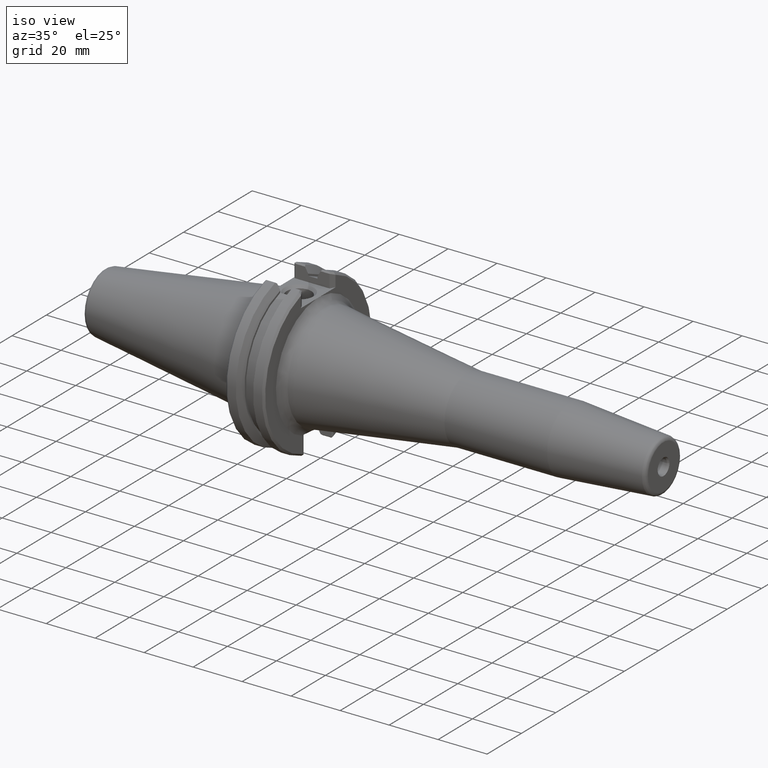
[diagram: clean part render]
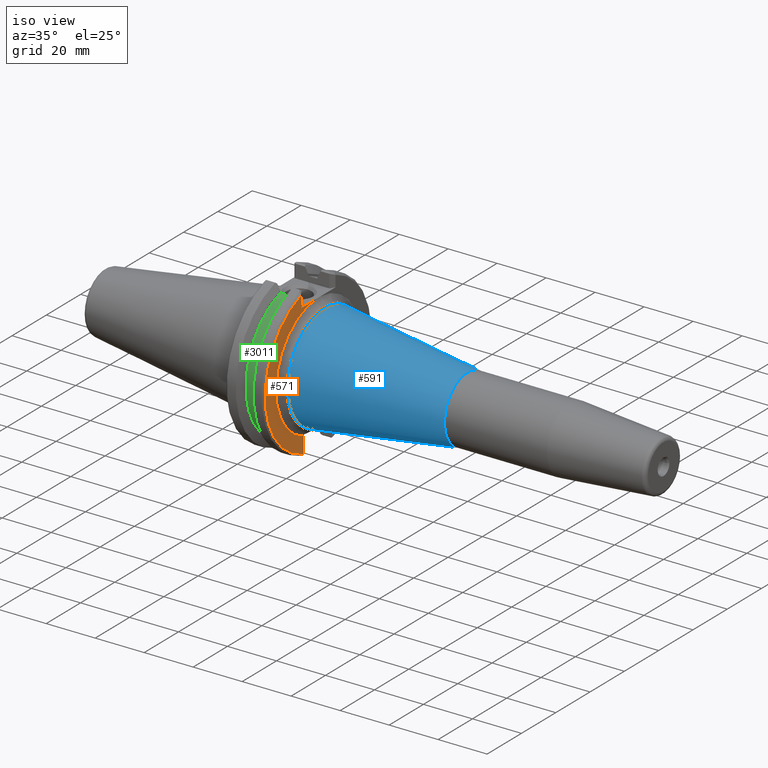
[diagram: same view with three faces highlighted in distinct colors, each labeled with its STEP entity id]
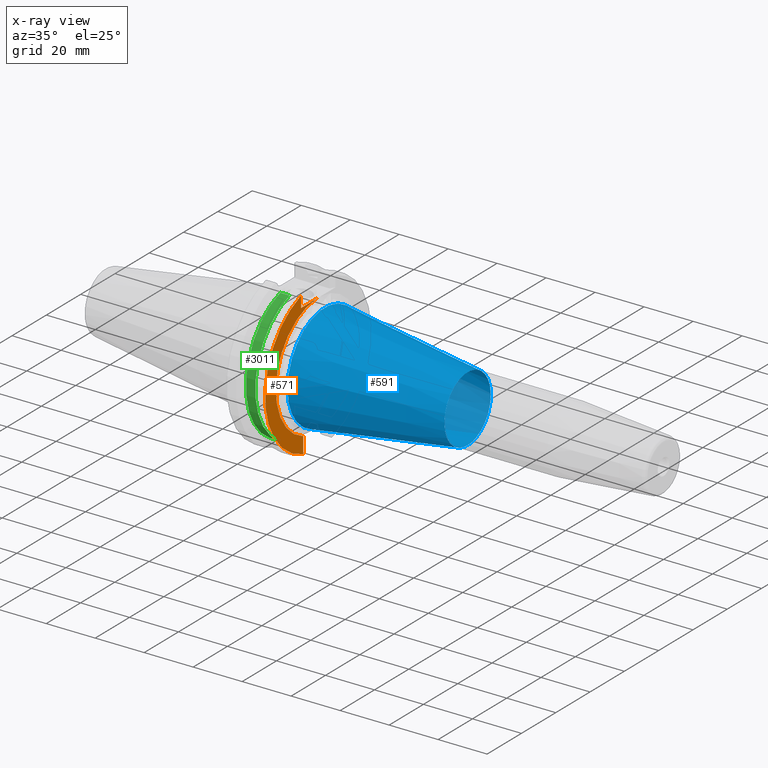
[diagram: x-ray of the same camera — body ghosted, the three highlighted faces saturated]
A machine part, iso view with three faces highlighted in distinct colors.
The next image is the same camera in x-ray (body ghosted, the three faces saturated) — at least one of them is partly hidden behind the body in this view.
Their STEP definitions:

[orange] entity #571 — the highlighted planar face has unit normal (1, 0, 0).
#426=CARTESIAN_POINT('',(19.050000000000001,-8.763000000012962,-23.111419435865770));
#427=VERTEX_POINT('',#426);
#495=CARTESIAN_POINT('',(19.050000000000001,-1.179420154457874,24.688799999999993));
#496=VERTEX_POINT('',#495);
#522=CARTESIAN_POINT('',(19.050000000000001,0.0,0.0));
#523=DIRECTION('',(1.0,0.0,0.0));
#524=DIRECTION('',(0.0,-1.0,0.0));
#525=AXIS2_PLACEMENT_3D('',#522,#523,#524);
#526=CIRCLE('',#525,24.716955260321633);
#527=EDGE_CURVE('',#496,#427,#526,.T.);
#532=CARTESIAN_POINT('',(19.050000000000001,11.112500000000001,0.0));
#533=DIRECTION('',(1.0,0.0,0.0));
#534=DIRECTION('',(0.0,0.0,-1.0));
#535=AXIS2_PLACEMENT_3D('',#532,#533,#534);
#536=PLANE('',#535);
#537=ORIENTED_EDGE('',*,*,#527,.F.);
#538=CARTESIAN_POINT('',(19.050000000000001,-10.033000000010706,24.688799999999993));
#539=VERTEX_POINT('',#538);
#540=CARTESIAN_POINT('',(19.050000000000001,-10.033000000010706,24.688799999999993));
#541=DIRECTION('',(0.0,1.0,0.0));
#542=VECTOR('',#541,8.853579845552831);
#543=LINE('',#540,#542);
#544=EDGE_CURVE('',#539,#496,#543,.T.);
#545=ORIENTED_EDGE('',*,*,#544,.F.);
#546=CARTESIAN_POINT('',(19.050000000000001,-10.033000000010706,29.318851529345160));
#547=VERTEX_POINT('',#546);
#548=CARTESIAN_POINT('',(19.050000000000001,-10.033000000010706,29.318851529345160));
#549=DIRECTION('',(0.0,0.0,-1.0));
#550=VECTOR('',#549,4.630051529345167);
#551=LINE('',#548,#550);
#552=EDGE_CURVE('',#547,#539,#551,.T.);
#553=ORIENTED_EDGE('',*,*,#552,.F.);
#554=CARTESIAN_POINT('',(19.050000000000001,-8.763000000012962,-29.723155535706042));
#555=VERTEX_POINT('',#554);
#556=CARTESIAN_POINT('',(19.050000000000001,0.0,0.0));
#557=DIRECTION('',(-1.0,0.0,0.0));
#558=DIRECTION('',(0.0,-1.0,0.0));
#559=AXIS2_PLACEMENT_3D('',#556,#557,#558);
#560=CIRCLE('',#559,30.988000000000000);
#561=EDGE_CURVE('',#555,#547,#560,.T.);
#562=ORIENTED_EDGE('',*,*,#561,.F.);
#563=CARTESIAN_POINT('',(19.050000000000001,-8.763000000012962,-23.111419435865770));
#564=DIRECTION('',(0.0,0.0,-1.0));
#565=VECTOR('',#564,6.611736099840272);
#566=LINE('',#563,#565);
#567=EDGE_CURVE('',#427,#555,#566,.T.);
#568=ORIENTED_EDGE('',*,*,#567,.F.);
#569=EDGE_LOOP('',(#537,#545,#553,#562,#568));
#570=FACE_OUTER_BOUND('',#569,.T.);
#571=ADVANCED_FACE('',(#570),#536,.T.);

[blue] entity #591 — the highlighted conical surface has half-angle 8 deg.
#413=CARTESIAN_POINT('',(21.673800388273726,21.698618186797326,0.0));
#414=VERTEX_POINT('',#413);
#415=CARTESIAN_POINT('',(21.673800388273726,0.0,0.0));
#416=DIRECTION('',(-1.0,0.0,0.0));
#417=DIRECTION('',(0.0,-1.0,0.0));
#418=AXIS2_PLACEMENT_3D('',#415,#416,#417);
#419=CIRCLE('',#418,21.698618186797326);
#420=EDGE_CURVE('',#414,#414,#419,.T.);
#572=CARTESIAN_POINT('',(49.529999999999987,0.0,0.0));
#573=DIRECTION('',(-1.0,0.0,0.0));
#574=DIRECTION('',(0.0,1.0,0.0));
#575=AXIS2_PLACEMENT_3D('',#572,#573,#574);
#576=CONICAL_SURFACE('',#575,17.783684641728890,7.999999999999990);
#577=CARTESIAN_POINT('',(80.009999999999977,13.500000000000005,0.0));
#578=VERTEX_POINT('',#577);
#579=CARTESIAN_POINT('',(80.009999999999977,0.0,0.0));
#580=DIRECTION('',(1.0,0.0,0.0));
#581=DIRECTION('',(0.0,1.0,0.0));
#582=AXIS2_PLACEMENT_3D('',#579,#580,#581);
#583=CIRCLE('',#582,13.500000000000005);
#584=EDGE_CURVE('',#578,#578,#583,.T.);
#585=ORIENTED_EDGE('',*,*,#584,.F.);
#586=EDGE_LOOP('',(#585));
#587=FACE_OUTER_BOUND('',#586,.T.);
#588=ORIENTED_EDGE('',*,*,#420,.F.);
#589=EDGE_LOOP('',(#588));
#590=FACE_BOUND('',#589,.T.);
#591=ADVANCED_FACE('',(#587,#590),#576,.T.);

[green] entity #3011 — the highlighted cylindrical surface (partial cylindrical patch) has radius 28.1813 mm, axis along (-1, 0, 0).
#1396=CARTESIAN_POINT('',(13.051789999999141,-8.128000000011500,-26.983722606242601));
#1397=VERTEX_POINT('',#1396);
#1404=CARTESIAN_POINT('',(9.216389999999144,-8.128000000010564,-26.983722606241628));
#1405=VERTEX_POINT('',#1404);
#1406=CARTESIAN_POINT('',(9.216389999999144,-8.128000000010564,-26.983722606242114));
#1407=DIRECTION('',(1.0,-2.436157E-013,0.0));
#1408=VECTOR('',#1407,3.835399999999996);
#1409=LINE('',#1406,#1408);
#1410=EDGE_CURVE('',#1405,#1397,#1409,.T.);
#2235=CARTESIAN_POINT('',(9.216389999999144,-8.128000000010706,26.983722606241582));
#2236=VERTEX_POINT('',#2235);
#2243=CARTESIAN_POINT('',(13.051789999999141,-8.128000000010706,26.983722606242839));
#2244=VERTEX_POINT('',#2243);
#2245=CARTESIAN_POINT('',(13.051789999999141,-8.128000000011173,26.983722606242214));
#2246=DIRECTION('',(-1.0,2.436157E-013,0.0));
#2247=VECTOR('',#2246,3.835399999999996);
#2248=LINE('',#2245,#2247);
#2249=EDGE_CURVE('',#2244,#2236,#2248,.T.);
#2982=CARTESIAN_POINT('',(9.216390000001123,-1.056282E-011,0.0));
#2983=DIRECTION('',(-1.0,2.436620E-013,0.0));
#2984=DIRECTION('',(2.436620E-013,1.0,0.0));
#2985=AXIS2_PLACEMENT_3D('',#2982,#2983,#2984);
#2986=CIRCLE('',#2985,28.181300000010566);
#2987=EDGE_CURVE('',#1405,#2236,#2986,.T.);
#2994=CARTESIAN_POINT('',(11.134090000001123,-1.103012E-011,0.0));
#2995=DIRECTION('',(-1.0,2.436770E-013,0.0));
#2996=DIRECTION('',(2.436620E-013,1.0,0.0));
#2997=AXIS2_PLACEMENT_3D('',#2994,#2995,#2996);
#2998=CYLINDRICAL_SURFACE('',#2997,28.181300000011031);
#2999=ORIENTED_EDGE('',*,*,#1410,.T.);
#3000=CARTESIAN_POINT('',(13.051790000001123,-1.149742E-011,0.0));
#3001=DIRECTION('',(-1.0,2.436620E-013,0.0));
#3002=DIRECTION('',(2.436620E-013,1.0,0.0));
#3003=AXIS2_PLACEMENT_3D('',#3000,#3001,#3002);
#3004=CIRCLE('',#3003,28.181300000011497);
#3005=EDGE_CURVE('',#1397,#2244,#3004,.T.);
#3006=ORIENTED_EDGE('',*,*,#3005,.T.);
#3007=ORIENTED_EDGE('',*,*,#2249,.T.);
#3008=ORIENTED_EDGE('',*,*,#2987,.F.);
#3009=EDGE_LOOP('',(#2999,#3006,#3007,#3008));
#3010=FACE_OUTER_BOUND('',#3009,.T.);
#3011=ADVANCED_FACE('',(#3010),#2998,.T.);